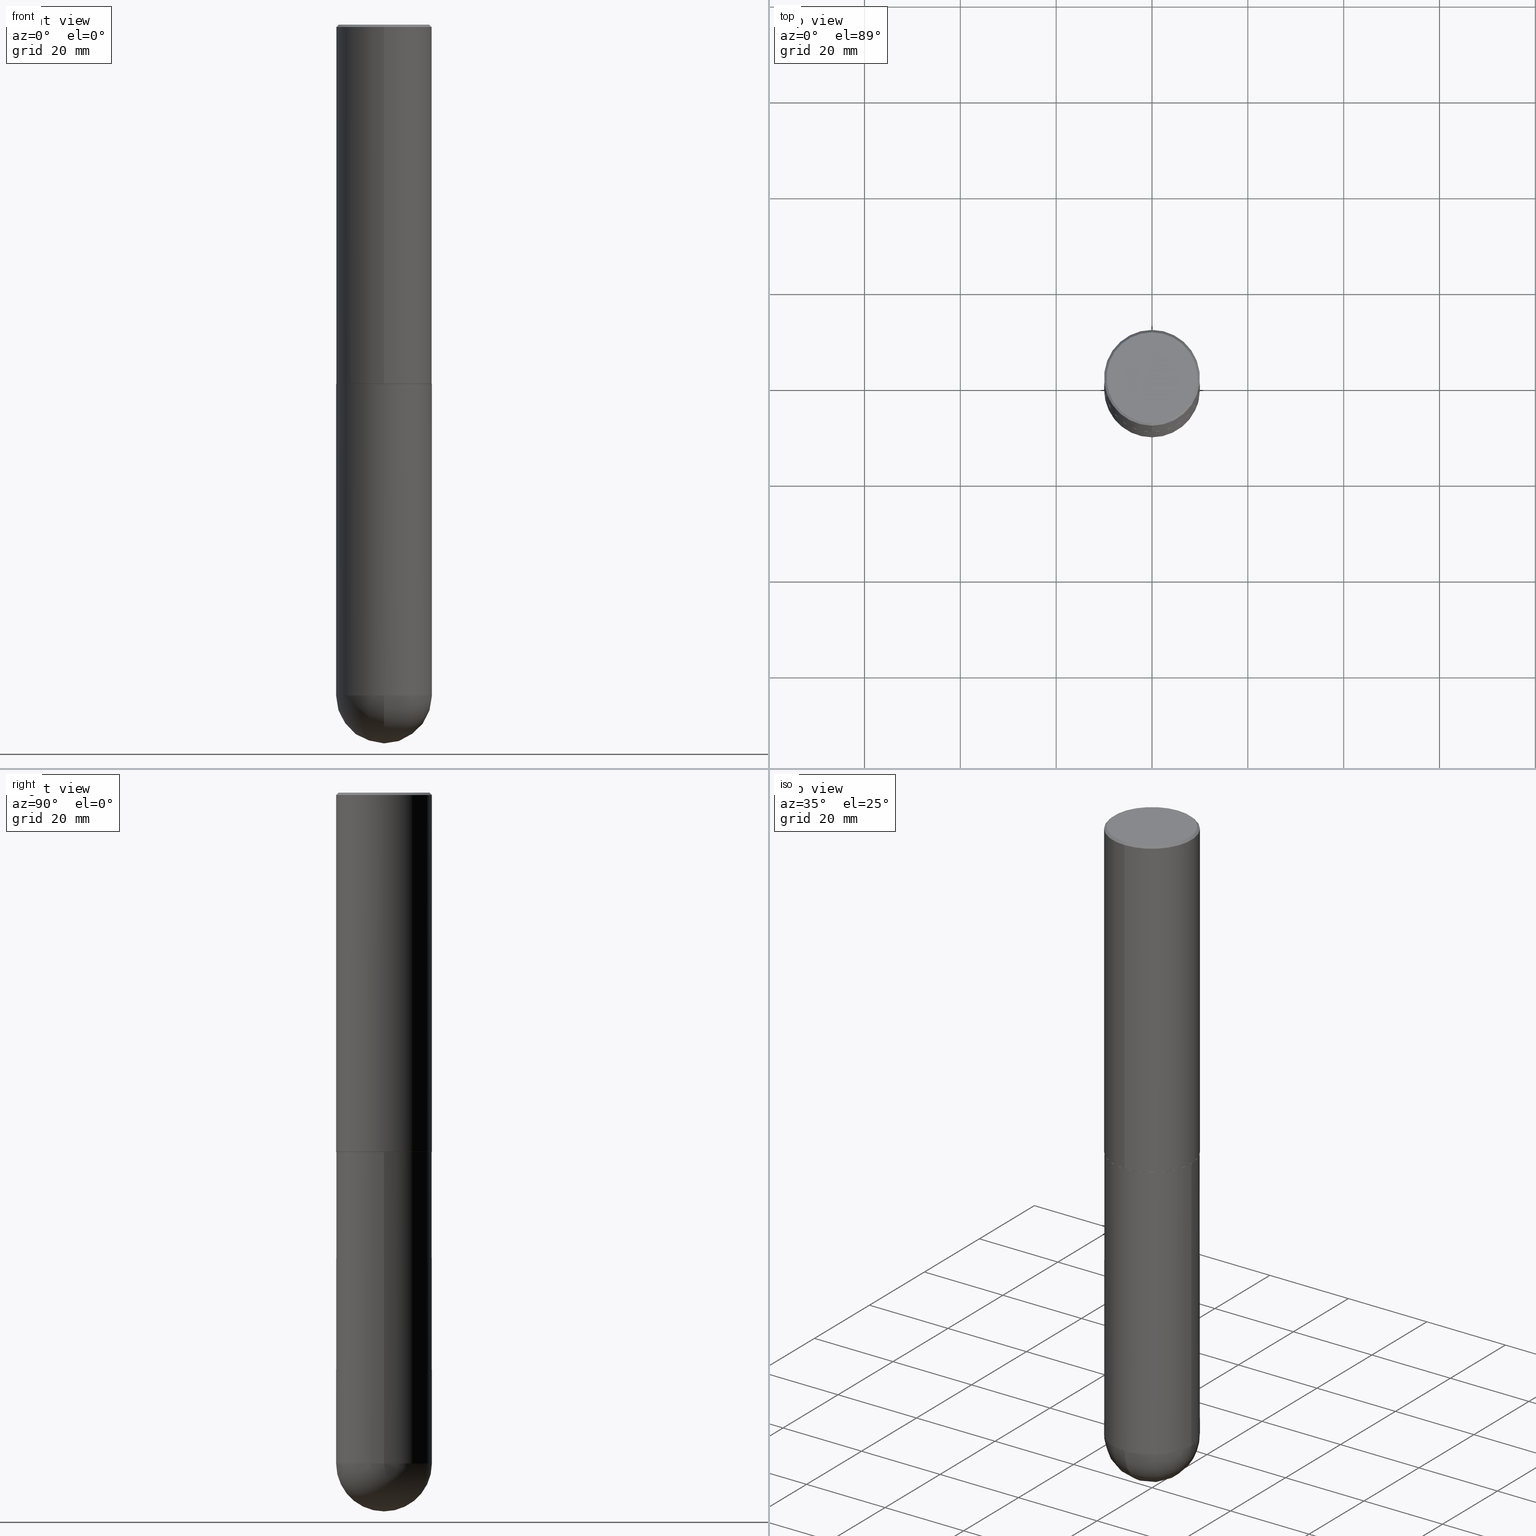
[diagram: canonical four-view strip — front | top / right | iso, engineering-drawing reading convention]
A machine part, canonical four-view strip (front | top / right | iso — engineering-drawing reading convention). The complete STEP part file that produces these views, byte-faithful:
ISO-10303-21;
HEADER;
FILE_DESCRIPTION (( 'STEP AP203' ),
    '1' );
FILE_NAME ('70548.STEP',
    '2024-04-10T12:35:20',
    ( '' ),
    ( '' ),
    'SwSTEP 2.0',
    'SolidWorks 2023',
    '' );
FILE_SCHEMA (( 'CONFIG_CONTROL_DESIGN' ));
ENDSEC;

DATA;
#1 = DIRECTION ( 'NONE',  ( 1.000000000000000000, -6.982962677686266711E-15, 0.000000000000000000 ) ) ;
#2 = CARTESIAN_POINT ( 'NONE',  ( 0.000000000000000000, 0.000000000000000000, 0.000000000000000000 ) ) ;
#3 = ORIENTED_EDGE ( 'NONE', *, *, #133, .F. ) ;
#4 = AXIS2_PLACEMENT_3D ( 'NONE', #39, #158, #394 ) ;
#5 = PERSON_AND_ORGANIZATION ( #117, #273 ) ;
#6 = VERTEX_POINT ( 'NONE', #89 ) ;
#7 = DIRECTION ( 'NONE',  ( -2.445468806185136597E-29, 3.491481338843145583E-15, 1.000000000000000000 ) ) ;
#8 = ORIENTED_EDGE ( 'NONE', *, *, #174, .T. ) ;
#9 = CARTESIAN_POINT ( 'NONE',  ( 0.3937000000000001054, -2.749192406205084005E-15, 1.919750796630860452E-29 ) ) ;
#10 = AXIS2_PLACEMENT_3D ( 'NONE', #119, #248, #353 ) ;
#11 = CC_DESIGN_DATE_AND_TIME_ASSIGNMENT ( #154, #286, ( #14 ) ) ;
#12 = CARTESIAN_POINT ( 'NONE',  ( 2.797406750687515181E-15, 0.3937000000000001609, -1.374461349052444348E-15 ) ) ;
#13 = AXIS2_PLACEMENT_3D ( 'NONE', #173, #406, #107 ) ;
#14 = SECURITY_CLASSIFICATION ( '', '', #34 ) ;
#15 = CARTESIAN_POINT ( 'NONE',  ( -0.3937000000000001054, 2.797406750687515181E-15, -1.936584745033357016E-29 ) ) ;
#16 = FACE_OUTER_BOUND ( 'NONE', #166, .T. ) ;
#17 = LINE ( 'NONE', #236, #178 ) ;
#18 = VERTEX_POINT ( 'NONE', #84 ) ;
#19 = AXIS2_PLACEMENT_3D ( 'NONE', #316, #358, #281 ) ;
#20 = DIRECTION ( 'NONE',  ( -2.445707993586407058E-29, 3.491138808870824878E-15, 1.000000000000000000 ) ) ;
#21 = DIRECTION ( 'NONE',  ( 2.438088387897960049E-29, -3.491481338843145188E-15, -1.000000000000000000 ) ) ;
#22 = CARTESIAN_POINT ( 'NONE',  ( 7.220735744022852519E-29, -1.030929694920215502E-14, -2.952700000000000102 ) ) ;
#23 = VECTOR ( 'NONE', #104, 39.37007874015748143 ) ;
#24 = VERTEX_POINT ( 'NONE', #210 ) ;
#25 = DIRECTION ( 'NONE',  ( -2.445468806185136597E-29, 3.491481338843145583E-15, 1.000000000000000000 ) ) ;
#26 = CARTESIAN_POINT ( 'NONE',  ( 4.891415987172836711E-31, -6.982277617741682099E-17, -0.02000000000000009062 ) ) ;
#27 = PERSON_AND_ORGANIZATION ( #117, #273 ) ;
#28 = ADVANCED_FACE ( 'NONE', ( #349 ), #85, .T. ) ;
#29 = DIRECTION ( 'NONE',  ( -4.937700262165728178E-15, -0.7071067811867141062, 0.7071067811863809283 ) ) ;
#30 = ORIENTED_EDGE ( 'NONE', *, *, #234, .T. ) ;
#31 = PERSON_AND_ORGANIZATION ( #117, #273 ) ;
#32 = CARTESIAN_POINT ( 'NONE',  ( -4.277078807657653030E-45, 6.105338762096597437E-31, 1.748810086434606711E-16 ) ) ;
#33 = FACE_OUTER_BOUND ( 'NONE', #114, .T. ) ;
#34 = SECURITY_CLASSIFICATION_LEVEL ( 'unclassified' ) ;
#35 = ORIENTED_EDGE ( 'NONE', *, *, #195, .T. ) ;
#36 = CIRCLE ( 'NONE', #10, 0.3937000000000001054 ) ;
#37 = EDGE_CURVE ( 'NONE', #293, #214, #70, .T. ) ;
#38 = ORIENTED_EDGE ( 'NONE', *, *, #37, .T. ) ;
#39 = CARTESIAN_POINT ( 'NONE',  ( 7.221441992662584645E-29, -1.030828556095288414E-14, -2.952700000000000102 ) ) ;
#40 = EDGE_CURVE ( 'NONE', #168, #64, #196, .T. ) ;
#41 = ORIENTED_EDGE ( 'NONE', *, *, #94, .T. ) ;
#42 = FACE_OUTER_BOUND ( 'NONE', #386, .T. ) ;
#43 = CARTESIAN_POINT ( 'NONE',  ( 7.218996284668997343E-29, -1.030479442214401424E-14, -2.951700000000000212 ) ) ;
#44 = DIRECTION ( 'NONE',  ( 4.937700262164538576E-15, 0.7071067811865437980, -0.7071067811865511255 ) ) ;
#45 = LINE ( 'NONE', #15, #23 ) ;
#46 = PRODUCT ( '70548', '70548', '', ( #385 ) ) ;
#47 = CARTESIAN_POINT ( 'NONE',  ( -2.749192406205012614E-15, -0.3937000000000105970, -2.951699999999998436 ) ) ;
#48 = DIRECTION ( 'NONE',  ( 6.982962677686265922E-15, 1.000000000000000000, -2.775563112689116301E-15 ) ) ;
#49 = CIRCLE ( 'NONE', #265, 0.3937000000000001054 ) ;
#50 = EDGE_CURVE ( 'NONE', #18, #64, #402, .T. ) ;
#51 = DIRECTION ( 'NONE',  ( -2.445707993586407058E-29, 3.491138808870824878E-15, 1.000000000000000000 ) ) ;
#52 = AXIS2_PLACEMENT_3D ( 'NONE', #143, #140, #271 ) ;
#53 = AXIS2_PLACEMENT_3D ( 'NONE', #382, #21, #276 ) ;
#54 = VERTEX_POINT ( 'NONE', #47 ) ;
#55 = EDGE_LOOP ( 'NONE', ( #96, #56, #184, #247 ) ) ;
#56 = ORIENTED_EDGE ( 'NONE', *, *, #242, .F. ) ;
#57 = CARTESIAN_POINT ( 'NONE',  ( 7.218996284668997343E-29, -1.030479442214401424E-14, -2.951700000000000212 ) ) ;
#58 = ADVANCED_FACE ( 'NONE', ( #137 ), #300, .T. ) ;
#59 = COORDINATED_UNIVERSAL_TIME_OFFSET ( 5, 0, .BEHIND. ) ;
#60 = ORIENTED_EDGE ( 'NONE', *, *, #332, .F. ) ;
#61 = COORDINATED_UNIVERSAL_TIME_OFFSET ( 5, 0, .BEHIND. ) ;
#62 = CIRCLE ( 'NONE', #389, 0.3937000000000000499 ) ;
#63 = ADVANCED_FACE ( 'NONE', ( #67 ), #66, .T. ) ;
#64 = VERTEX_POINT ( 'NONE', #102 ) ;
#65 = CALENDAR_DATE ( 2024, 10, 4 ) ;
#66 = CYLINDRICAL_SURFACE ( 'NONE', #397, 0.3937000000000001054 ) ;
#67 = FACE_OUTER_BOUND ( 'NONE', #306, .T. ) ;
#68 = PLANE ( 'NONE',  #113 ) ;
#69 = DIRECTION ( 'NONE',  ( -2.445468806185136597E-29, 3.491481338843145583E-15, 1.000000000000000000 ) ) ;
#70 = LINE ( 'NONE', #9, #377 ) ;
#71 = CIRCLE ( 'NONE', #310, 0.3937000000000001054 ) ;
#72 = APPROVAL_PERSON_ORGANIZATION ( #5, #239, #392 ) ;
#73 = LOCAL_TIME ( 8, 35, 20.00000000000000000, #97 ) ;
#74 = EDGE_CURVE ( 'NONE', #18, #54, #362, .T. ) ;
#75 =( LENGTH_UNIT ( ) NAMED_UNIT ( * ) SI_UNIT ( $, .METRE. ) );
#76 = FACE_OUTER_BOUND ( 'NONE', #262, .T. ) ;
#77 = PLANE ( 'NONE',  #53 ) ;
#78 = DIRECTION ( 'NONE',  ( -1.000000000000000000, 6.982962677686265922E-15, -4.883557194083112340E-29 ) ) ;
#79 = CARTESIAN_POINT ( 'NONE',  ( 1.314781518801735134E-28, -1.971852921157570065E-14, -5.511800000000000033 ) ) ;
#80 = CIRCLE ( 'NONE', #237, 0.3937000000000001054 ) ;
#81 = LOCAL_TIME ( 8, 35, 20.00000000000000000, #59 ) ;
#82 = CC_DESIGN_PERSON_AND_ORGANIZATION_ASSIGNMENT ( #31, #218, ( #335 ) ) ;
#83 = ADVANCED_FACE ( 'NONE', ( #130 ), #374, .T. ) ;
#84 = CARTESIAN_POINT ( 'NONE',  ( 2.797406750687551863E-15, 0.3936999999999900024, -2.951700000000001545 ) ) ;
#85 = CONICAL_SURFACE ( 'NONE', #139, 0.3937000000000000499, 0.7853981633974466137 ) ;
#86 =( NAMED_UNIT ( * ) SI_UNIT ( $, .STERADIAN. ) SOLID_ANGLE_UNIT ( ) );
#87 = ADVANCED_FACE ( 'NONE', ( #167 ), #68, .F. ) ;
#88 = DATE_AND_TIME ( #388, #73 ) ;
#89 = CARTESIAN_POINT ( 'NONE',  ( 2.749192406205216928E-15, 0.3936999999999805655, -5.511800000000000921 ) ) ;
#90 = CALENDAR_DATE ( 2024, 10, 4 ) ;
#91 = FACE_OUTER_BOUND ( 'NONE', #291, .T. ) ;
#92 = ORIENTED_EDGE ( 'NONE', *, *, #241, .T. ) ;
#93 = PERSON_AND_ORGANIZATION_ROLE ( 'design_supplier' ) ;
#94 = EDGE_CURVE ( 'NONE', #181, #118, #45, .T. ) ;
#95 = CARTESIAN_POINT ( 'NONE',  ( -0.3937000000000001054, -1.197941514563138553E-14, -5.511800000000000033 ) ) ;
#96 = ORIENTED_EDGE ( 'NONE', *, *, #315, .F. ) ;
#97 = COORDINATED_UNIVERSAL_TIME_OFFSET ( 5, 0, .BEHIND. ) ;
#98 = AXIS2_PLACEMENT_3D ( 'NONE', #326, #20, #200 ) ;
#99 = CYLINDRICAL_SURFACE ( 'NONE', #145, 0.3937000000000001054 ) ;
#100 = APPLICATION_PROTOCOL_DEFINITION ( 'international standard', 'config_control_design', 1994, #142 ) ;
#101 = DIRECTION ( 'NONE',  ( 6.982962677686265133E-15, 1.000000000000000000, -3.491137977679279424E-15 ) ) ;
#102 = CARTESIAN_POINT ( 'NONE',  ( 2.749192406205083217E-15, 0.3936999999999999389, -0.02000000000000146452 ) ) ;
#103 = CIRCLE ( 'NONE', #207, 0.3937000000000002720 ) ;
#104 = DIRECTION ( 'NONE',  ( -2.445468806185136877E-29, 3.491481338843145188E-15, 1.000000000000000000 ) ) ;
#105 = ADVANCED_FACE ( 'NONE', ( #42 ), #99, .T. ) ;
#106 = DIRECTION ( 'NONE',  ( -1.000000000000000000, 7.105427357601001070E-15, -4.926315508542082329E-29 ) ) ;
#107 = DIRECTION ( 'NONE',  ( -6.982962677686265133E-15, -1.000000000000000000, 4.173946514383900962E-15 ) ) ;
#108 = AXIS2_PLACEMENT_3D ( 'NONE', #371, #227, #376 ) ;
#109 = CARTESIAN_POINT ( 'NONE',  ( 4.891415987172836711E-31, -6.982277617741682099E-17, -0.02000000000000009062 ) ) ;
#110 = CARTESIAN_POINT ( 'NONE',  ( -0.3937000000000000499, -1.197941514563138553E-14, -2.952700000000000102 ) ) ;
#111 = APPROVAL_DATE_TIME ( #305, #121 ) ;
#112 = ORIENTED_EDGE ( 'NONE', *, *, #290, .F. ) ;
#113 = AXIS2_PLACEMENT_3D ( 'NONE', #199, #337, #398 ) ;
#114 = EDGE_LOOP ( 'NONE', ( #217, #92, #267, #256 ) ) ;
#115 = DESIGN_CONTEXT ( 'detailed design', #179, 'design' ) ;
#116 = ORIENTED_EDGE ( 'NONE', *, *, #209, .T. ) ;
#117 = PERSON ( 'UNSPECIFIED', 'UNSPECIFIED', 'UNSPECIFIED', ('UNSPECIFIED'), ('UNSPECIFIED'), ('UNSPECIFIED') ) ;
#118 = VERTEX_POINT ( 'NONE', #110 ) ;
#119 = CARTESIAN_POINT ( 'NONE',  ( 1.347893496593123646E-28, -1.924434684343564878E-14, -5.511800000000000033 ) ) ;
#120 = PRODUCT_DEFINITION ( 'UNKNOWN', '', #335, #115 ) ;
#121 = APPROVAL ( #360, 'UNSPECIFIED' ) ;
#122 = SPHERICAL_SURFACE ( 'NONE', #297, 0.3937000000000001054 ) ;
#123 = AXIS2_PLACEMENT_3D ( 'NONE', #235, #269, #268 ) ;
#124 = ORIENTED_EDGE ( 'NONE', *, *, #204, .F. ) ;
#125 = VERTEX_POINT ( 'NONE', #203 ) ;
#126 = DIRECTION ( 'NONE',  ( 1.000000000000000000, -6.982962677686267499E-15, 0.000000000000000000 ) ) ;
#127 = EDGE_LOOP ( 'NONE', ( #220, #313, #387, #124 ) ) ;
#128 = PERSON_AND_ORGANIZATION_ROLE ( 'creator' ) ;
#129 = AXIS2_PLACEMENT_3D ( 'NONE', #380, #78, #48 ) ;
#130 = FACE_OUTER_BOUND ( 'NONE', #347, .T. ) ;
#131 = CC_DESIGN_APPROVAL ( #239, ( #120 ) ) ;
#132 = MANIFOLD_SOLID_BREP ( 'Body-Move/Copy2[2]', #212 ) ;
#133 = EDGE_CURVE ( 'NONE', #118, #214, #62, .T. ) ;
#134 = CARTESIAN_POINT ( 'NONE',  ( -4.277078807657653030E-45, 6.105338762096597437E-31, 1.748810086434606711E-16 ) ) ;
#135 = APPROVAL ( #318, 'UNSPECIFIED' ) ;
#136 = CARTESIAN_POINT ( 'NONE',  ( 0.3937000000000001054, -1.752601430252398275E-14, -5.511800000000000033 ) ) ;
#137 = FACE_OUTER_BOUND ( 'NONE', #162, .T. ) ;
#138 = EDGE_CURVE ( 'NONE', #181, #24, #279, .T. ) ;
#139 = AXIS2_PLACEMENT_3D ( 'NONE', #26, #404, #101 ) ;
#140 = DIRECTION ( 'NONE',  ( -2.445707993586407058E-29, 3.491138808870824878E-15, 1.000000000000000000 ) ) ;
#141 = DIRECTION ( 'NONE',  ( 2.445707993586407058E-29, -3.491138808870824878E-15, -1.000000000000000000 ) ) ;
#142 = APPLICATION_CONTEXT ( 'configuration controlled 3d designs of mechanical parts and assemblies' ) ;
#143 = CARTESIAN_POINT ( 'NONE',  ( 7.221441992662584645E-29, -1.030828556095288414E-14, -2.952700000000000102 ) ) ;
#144 = SPHERICAL_SURFACE ( 'NONE', #129, 0.3937000000000001054 ) ;
#145 = AXIS2_PLACEMENT_3D ( 'NONE', #366, #69, #170 ) ;
#146 = CC_DESIGN_SECURITY_CLASSIFICATION ( #14, ( #335 ) ) ;
#147 = EDGE_CURVE ( 'NONE', #54, #18, #103, .T. ) ;
#148 = DIRECTION ( 'NONE',  ( -4.851104656540954809E-15, -0.7071067811865486830, -0.7071067811865462405 ) ) ;
#149 = ADVANCED_FACE ( 'NONE', ( #91 ), #287, .F. ) ;
#150 = CC_DESIGN_PERSON_AND_ORGANIZATION_ASSIGNMENT ( #27, #193, ( #14 ) ) ;
#151 = ORIENTED_EDGE ( 'NONE', *, *, #174, .F. ) ;
#152 = CARTESIAN_POINT ( 'NONE',  ( -2.742209443527324233E-15, -0.3927000000000103186, -2.952699999999998326 ) ) ;
#153 = ORIENTED_EDGE ( 'NONE', *, *, #204, .T. ) ;
#154 = DATE_AND_TIME ( #314, #208 ) ;
#155 = AXIS2_PLACEMENT_3D ( 'NONE', #43, #233, #298 ) ;
#156 = APPROVAL_PERSON_ORGANIZATION ( #292, #135, #187 ) ;
#157 = ORIENTED_EDGE ( 'NONE', *, *, #147, .T. ) ;
#158 = DIRECTION ( 'NONE',  ( -2.445707993586407058E-29, 3.491138808870824484E-15, 1.000000000000000000 ) ) ;
#159 = EDGE_LOOP ( 'NONE', ( #359, #253 ) ) ;
#160 = DIRECTION ( 'NONE',  ( -6.982962677686265922E-15, -1.000000000000000000, 3.491138808870824878E-15 ) ) ;
#161 = UNCERTAINTY_MEASURE_WITH_UNIT (LENGTH_MEASURE( 1.000000000000000082E-05 ), #202, 'distance_accuracy_value', 'NONE');
#162 = EDGE_LOOP ( 'NONE', ( #183, #295, #8, #112 ) ) ;
#163 = DIRECTION ( 'NONE',  ( -2.445707993586407058E-29, 3.491138808870824878E-15, 1.000000000000000000 ) ) ;
#164 = CIRCLE ( 'NONE', #408, 0.3937000000000000499 ) ;
#165 = DIRECTION ( 'NONE',  ( -6.982962677686265922E-15, -1.000000000000000000, 3.491138808870824878E-15 ) ) ;
#166 = EDGE_LOOP ( 'NONE', ( #277, #282, #225, #321 ) ) ;
#167 = FACE_OUTER_BOUND ( 'NONE', #159, .T. ) ;
#168 = VERTEX_POINT ( 'NONE', #222 ) ;
#169 = EDGE_CURVE ( 'NONE', #175, #168, #299, .T. ) ;
#170 = DIRECTION ( 'NONE',  ( 1.000000000000000000, -6.982962677686266711E-15, 4.876176775795935793E-29 ) ) ;
#171 = CIRCLE ( 'NONE', #324, 0.3937000000000000499 ) ;
#172 = CARTESIAN_POINT ( 'NONE',  ( 1.412743020541493694E-28, -2.106901824243703318E-14, -5.905499999999999972 ) ) ;
#173 = CARTESIAN_POINT ( 'NONE',  ( 7.221441992662584645E-29, -1.030828556095288414E-14, -2.952700000000000102 ) ) ;
#174 = EDGE_CURVE ( 'NONE', #54, #259, #211, .T. ) ;
#175 = VERTEX_POINT ( 'NONE', #189 ) ;
#176 = CARTESIAN_POINT ( 'NONE',  ( 4.891415987172836711E-31, -6.982277617741682099E-17, -0.02000000000000009062 ) ) ;
#177 = AXIS2_PLACEMENT_3D ( 'NONE', #176, #163, #296 ) ;
#178 = VECTOR ( 'NONE', #148, 39.37007874015748854 ) ;
#179 = APPLICATION_CONTEXT ( 'configuration controlled 3d designs of mechanical parts and assemblies' ) ;
#180 = CONICAL_SURFACE ( 'NONE', #123, 0.3926999999999999935, 0.7853981633976873100 ) ;
#181 = VERTEX_POINT ( 'NONE', #95 ) ;
#182 = PERSON_AND_ORGANIZATION ( #117, #273 ) ;
#183 = ORIENTED_EDGE ( 'NONE', *, *, #50, .F. ) ;
#184 = ORIENTED_EDGE ( 'NONE', *, *, #40, .T. ) ;
#185 = CARTESIAN_POINT ( 'NONE',  ( -2.742209443527324233E-15, -0.3927000000000103186, -2.952699999999998326 ) ) ;
#186 = ORIENTED_EDGE ( 'NONE', *, *, #138, .F. ) ;
#187 = APPROVAL_ROLE ( '' ) ;
#188 = PRODUCT_DEFINITION_SHAPE ( 'NONE', 'NONE',  #120 ) ;
#189 = CARTESIAN_POINT ( 'NONE',  ( -2.632373081744935132E-15, -0.3736999999999998101, 1.479519581518487138E-15 ) ) ;
#190 = CONICAL_SURFACE ( 'NONE', #98, 0.3926999999999999935, 0.7853981633976873100 ) ;
#191 = CALENDAR_DATE ( 2024, 10, 4 ) ;
#192 = VERTEX_POINT ( 'NONE', #152 ) ;
#193 = PERSON_AND_ORGANIZATION_ROLE ( 'classification_officer' ) ;
#194 = EDGE_LOOP ( 'NONE', ( #320, #30, #116, #331 ) ) ;
#195 = EDGE_CURVE ( 'NONE', #293, #6, #71, .T. ) ;
#196 = LINE ( 'NONE', #330, #272 ) ;
#197 = ORIENTED_EDGE ( 'NONE', *, *, #348, .F. ) ;
#198 = EDGE_CURVE ( 'NONE', #214, #118, #171, .T. ) ;
#199 = CARTESIAN_POINT ( 'NONE',  ( 2.609533152651356226E-15, 0.3736999999999998101, -1.217198068553296439E-15 ) ) ;
#200 = DIRECTION ( 'NONE',  ( -6.982962677686265133E-15, -1.000000000000000000, 4.173946514383900962E-15 ) ) ;
#201 = DIRECTION ( 'NONE',  ( 6.982962677686265133E-15, 1.000000000000000000, 0.000000000000000000 ) ) ;
#202 =( CONVERSION_BASED_UNIT ( 'INCH', #378 ) LENGTH_UNIT ( ) NAMED_UNIT ( #373 ) );
#203 = CARTESIAN_POINT ( 'NONE',  ( 2.793854037008787252E-15, 0.3926999999999897240, -2.952700000000001435 ) ) ;
#204 = EDGE_CURVE ( 'NONE', #24, #293, #36, .T. ) ;
#205 = DATE_AND_TIME ( #191, #81 ) ;
#206 = FACE_OUTER_BOUND ( 'NONE', #317, .T. ) ;
#207 = AXIS2_PLACEMENT_3D ( 'NONE', #57, #319, #226 ) ;
#208 = LOCAL_TIME ( 8, 35, 20.00000000000000000, #396 ) ;
#209 = EDGE_CURVE ( 'NONE', #192, #54, #355, .T. ) ;
#210 = CARTESIAN_POINT ( 'NONE',  ( -2.797406750687381075E-15, -0.3937000000000196454, -5.511799999999999145 ) ) ;
#211 = LINE ( 'NONE', #329, #243 ) ;
#212 = CLOSED_SHELL ( 'NONE', ( #336, #83, #400, #28, #58, #372, #149, #87 ) ) ;
#213 = ADVANCED_FACE ( 'NONE', ( #283 ), #122, .T. ) ;
#214 = VERTEX_POINT ( 'NONE', #258 ) ;
#215 = DATE_TIME_ROLE ( 'creation_date' ) ;
#216 = DIRECTION ( 'NONE',  ( -1.000000000000000000, 6.982962677686265922E-15, -4.883557194083112340E-29 ) ) ;
#217 = ORIENTED_EDGE ( 'NONE', *, *, #338, .T. ) ;
#218 = PERSON_AND_ORGANIZATION_ROLE ( 'creator' ) ;
#219 = APPROVAL_STATUS ( 'not_yet_approved' ) ;
#220 = ORIENTED_EDGE ( 'NONE', *, *, #379, .F. ) ;
#221 = PERSON_AND_ORGANIZATION ( #117, #273 ) ;
#222 = CARTESIAN_POINT ( 'NONE',  ( 2.679362779428219524E-15, 0.3736999999999998101, -1.129757564231565944E-15 ) ) ;
#223 = AXIS2_PLACEMENT_3D ( 'NONE', #134, #303, #238 ) ;
#224 = AXIS2_PLACEMENT_3D ( 'NONE', #109, #141, #405 ) ;
#225 = ORIENTED_EDGE ( 'NONE', *, *, #348, .T. ) ;
#226 = DIRECTION ( 'NONE',  ( -6.982962677686265922E-15, -1.000000000000000000, 4.163344669033672479E-15 ) ) ;
#227 = DIRECTION ( 'NONE',  ( -2.445707993586407058E-29, 3.491138808870824878E-15, 1.000000000000000000 ) ) ;
#228 = CC_DESIGN_PERSON_AND_ORGANIZATION_ASSIGNMENT ( #328, #128, ( #120 ) ) ;
#229 = DIRECTION ( 'NONE',  ( -2.445468806185136877E-29, 3.491481338843145188E-15, 1.000000000000000000 ) ) ;
#230 = ORIENTED_EDGE ( 'NONE', *, *, #94, .F. ) ;
#231 = LINE ( 'NONE', #368, #307 ) ;
#232 = CIRCLE ( 'NONE', #223, 0.3736999999999998101 ) ;
#233 = DIRECTION ( 'NONE',  ( -2.445707993586407058E-29, 3.491138808870824878E-15, 1.000000000000000000 ) ) ;
#234 = EDGE_CURVE ( 'NONE', #125, #192, #351, .T. ) ;
#235 = CARTESIAN_POINT ( 'NONE',  ( 7.221441992662584645E-29, -1.030828556095288414E-14, -2.952700000000000102 ) ) ;
#236 = CARTESIAN_POINT ( 'NONE',  ( -2.700978061722651252E-15, -0.3937000000000001054, -0.01999999999999871672 ) ) ;
#237 = AXIS2_PLACEMENT_3D ( 'NONE', #275, #410, #284 ) ;
#238 = DIRECTION ( 'NONE',  ( -6.982962677686265922E-15, -1.000000000000000000, 3.491138808870824878E-15 ) ) ;
#239 = APPROVAL ( #219, 'UNSPECIFIED' ) ;
#240 = CARTESIAN_POINT ( 'NONE',  ( 4.891415987172836711E-31, -6.982277617741682099E-17, -0.02000000000000009062 ) ) ;
#241 = EDGE_CURVE ( 'NONE', #125, #18, #231, .T. ) ;
#242 = EDGE_CURVE ( 'NONE', #168, #175, #232, .T. ) ;
#243 = VECTOR ( 'NONE', #361, 39.37007874015748143 ) ;
#244 = CIRCLE ( 'NONE', #401, 0.3937000000000001054 ) ;
#245 =( NAMED_UNIT ( * ) PLANE_ANGLE_UNIT ( ) SI_UNIT ( $, .RADIAN. ) );
#246 = DIRECTION ( 'NONE',  ( 0.000000000000000000, 0.000000000000000000, 1.000000000000000000 ) ) ;
#247 = ORIENTED_EDGE ( 'NONE', *, *, #290, .T. ) ;
#248 = DIRECTION ( 'NONE',  ( -2.445468806185136597E-29, 3.491481338843145583E-15, 1.000000000000000000 ) ) ;
#249 = PERSON_AND_ORGANIZATION_ROLE ( 'design_owner' ) ;
#250 = CARTESIAN_POINT ( 'NONE',  ( 1.314781518801735134E-28, -1.971852921157570065E-14, -5.511800000000000033 ) ) ;
#251 = VECTOR ( 'NONE', #29, 39.37007874015748143 ) ;
#252 = AXIS2_PLACEMENT_3D ( 'NONE', #2, #246, #312 ) ;
#253 = ORIENTED_EDGE ( 'NONE', *, *, #169, .T. ) ;
#254 = ORIENTED_EDGE ( 'NONE', *, *, #50, .T. ) ;
#255 = COORDINATED_UNIVERSAL_TIME_OFFSET ( 5, 0, .BEHIND. ) ;
#256 = ORIENTED_EDGE ( 'NONE', *, *, #209, .F. ) ;
#257 = ADVANCED_FACE ( 'NONE', ( #76 ), #144, .T. ) ;
#258 = CARTESIAN_POINT ( 'NONE',  ( 0.3937000000000000499, -1.305848935540723823E-14, -2.952700000000000102 ) ) ;
#259 = VERTEX_POINT ( 'NONE', #343 ) ;
#260 = LOCAL_TIME ( 8, 35, 20.00000000000000000, #255 ) ;
#261 = CARTESIAN_POINT ( 'NONE',  ( 0.000000000000000000, 0.000000000000000000, 0.000000000000000000 ) ) ;
#262 = EDGE_LOOP ( 'NONE', ( #285, #327, #186, #60 ) ) ;
#263 = DIRECTION ( 'NONE',  ( 6.982962677686265922E-15, 1.000000000000000000, -2.775563112689116301E-15 ) ) ;
#264 = DIRECTION ( 'NONE',  ( -2.445707993586407058E-29, 3.491138808870824878E-15, 1.000000000000000000 ) ) ;
#265 = AXIS2_PLACEMENT_3D ( 'NONE', #79, #407, #201 ) ;
#266 = DIRECTION ( 'NONE',  ( -2.445468806185136597E-29, 3.491481338843145583E-15, 1.000000000000000000 ) ) ;
#267 = ORIENTED_EDGE ( 'NONE', *, *, #147, .F. ) ;
#268 = DIRECTION ( 'NONE',  ( -6.982962677686265133E-15, -1.000000000000000000, 4.173946514383900962E-15 ) ) ;
#269 = DIRECTION ( 'NONE',  ( -2.445707993586407058E-29, 3.491138808870824878E-15, 1.000000000000000000 ) ) ;
#270 = CC_DESIGN_PERSON_AND_ORGANIZATION_ASSIGNMENT ( #390, #249, ( #46 ) ) ;
#271 = DIRECTION ( 'NONE',  ( -6.982962677686265133E-15, -1.000000000000000000, 4.173946514383900962E-15 ) ) ;
#272 = VECTOR ( 'NONE', #44, 39.37007874015748854 ) ;
#273 = ORGANIZATION ( 'UNSPECIFIED', 'UNSPECIFIED', '' ) ;
#274 = ORIENTED_EDGE ( 'NONE', *, *, #198, .T. ) ;
#275 = CARTESIAN_POINT ( 'NONE',  ( 1.347893496593123646E-28, -1.924434684343564878E-14, -5.511800000000000033 ) ) ;
#276 = DIRECTION ( 'NONE',  ( -1.000000000000000000, 6.982962677686265922E-15, -4.876176775795935793E-29 ) ) ;
#277 = ORIENTED_EDGE ( 'NONE', *, *, #169, .F. ) ;
#278 = MANIFOLD_SOLID_BREP ( 'Body-Move/Copy2[1]', #288 ) ;
#279 = CIRCLE ( 'NONE', #19, 0.3937000000000001054 ) ;
#280 = LOCAL_TIME ( 8, 35, 20.00000000000000000, #61 ) ;
#281 = DIRECTION ( 'NONE',  ( 1.000000000000000000, -6.982962677686266711E-15, 0.000000000000000000 ) ) ;
#282 = ORIENTED_EDGE ( 'NONE', *, *, #315, .T. ) ;
#283 = FACE_OUTER_BOUND ( 'NONE', #127, .T. ) ;
#284 = DIRECTION ( 'NONE',  ( 1.000000000000000000, -6.982962677686266711E-15, 0.000000000000000000 ) ) ;
#285 = ORIENTED_EDGE ( 'NONE', *, *, #309, .F. ) ;
#286 = DATE_TIME_ROLE ( 'classification_date' ) ;
#287 = PLANE ( 'NONE',  #4 ) ;
#288 = CLOSED_SHELL ( 'NONE', ( #63, #257, #213, #365, #105 ) ) ;
#289 = APPROVAL_PERSON_ORGANIZATION ( #221, #121, #364 ) ;
#290 = EDGE_CURVE ( 'NONE', #64, #259, #369, .T. ) ;
#291 = EDGE_LOOP ( 'NONE', ( #391, #375 ) ) ;
#292 = PERSON_AND_ORGANIZATION ( #117, #273 ) ;
#293 = VERTEX_POINT ( 'NONE', #136 ) ;
#294 = ADVANCED_BREP_SHAPE_REPRESENTATION ( '70548', ( #278, #132, #252 ), #384 ) ;
#295 = ORIENTED_EDGE ( 'NONE', *, *, #74, .T. ) ;
#296 = DIRECTION ( 'NONE',  ( -6.982962677686265133E-15, -1.000000000000000000, 3.491137977679279424E-15 ) ) ;
#297 = AXIS2_PLACEMENT_3D ( 'NONE', #250, #216, #263 ) ;
#298 = DIRECTION ( 'NONE',  ( -6.982962677686265922E-15, -1.000000000000000000, 4.163344669033672479E-15 ) ) ;
#299 = CIRCLE ( 'NONE', #411, 0.3736999999999998101 ) ;
#300 = CYLINDRICAL_SURFACE ( 'NONE', #346, 0.3937000000000001609 ) ;
#301 = SHAPE_DEFINITION_REPRESENTATION ( #188, #294 ) ;
#302 = DIRECTION ( 'NONE',  ( -7.105427357601001070E-15, -1.000000000000000000, 0.000000000000000000 ) ) ;
#303 = DIRECTION ( 'NONE',  ( -2.445707993586407058E-29, 3.491138808870824878E-15, 1.000000000000000000 ) ) ;
#304 = DIRECTION ( 'NONE',  ( 1.000000000000000000, -6.982962677686267499E-15, 0.000000000000000000 ) ) ;
#305 = DATE_AND_TIME ( #65, #280 ) ;
#306 = EDGE_LOOP ( 'NONE', ( #393, #41, #354, #357, #35 ) ) ;
#307 = VECTOR ( 'NONE', #333, 39.37007874015748143 ) ;
#308 = PRODUCT_RELATED_PRODUCT_CATEGORY ( 'detail', '', ( #46 ) ) ;
#309 = EDGE_CURVE ( 'NONE', #363, #6, #49, .T. ) ;
#310 = AXIS2_PLACEMENT_3D ( 'NONE', #311, #25, #1 ) ;
#311 = CARTESIAN_POINT ( 'NONE',  ( 1.347893496593123646E-28, -1.924434684343564878E-14, -5.511800000000000033 ) ) ;
#312 = DIRECTION ( 'NONE',  ( 1.000000000000000000, 0.000000000000000000, 0.000000000000000000 ) ) ;
#313 = ORIENTED_EDGE ( 'NONE', *, *, #309, .T. ) ;
#314 = CALENDAR_DATE ( 2024, 10, 4 ) ;
#315 = EDGE_CURVE ( 'NONE', #175, #259, #17, .T. ) ;
#316 = CARTESIAN_POINT ( 'NONE',  ( 1.347893496593123646E-28, -1.924434684343564878E-14, -5.511800000000000033 ) ) ;
#317 = EDGE_LOOP ( 'NONE', ( #274, #395 ) ) ;
#318 = APPROVAL_STATUS ( 'not_yet_approved' ) ;
#319 = DIRECTION ( 'NONE',  ( -2.445707993586407058E-29, 3.491138808870824878E-15, 1.000000000000000000 ) ) ;
#320 = ORIENTED_EDGE ( 'NONE', *, *, #241, .F. ) ;
#321 = ORIENTED_EDGE ( 'NONE', *, *, #40, .F. ) ;
#322 = DATE_AND_TIME ( #90, #260 ) ;
#323 = CARTESIAN_POINT ( 'NONE',  ( 7.220735744022852519E-29, -1.030929694920215502E-14, -2.952700000000000102 ) ) ;
#324 = AXIS2_PLACEMENT_3D ( 'NONE', #323, #7, #126 ) ;
#325 = CC_DESIGN_APPROVAL ( #121, ( #14 ) ) ;
#326 = CARTESIAN_POINT ( 'NONE',  ( 7.221441992662584645E-29, -1.030828556095288414E-14, -2.952700000000000102 ) ) ;
#327 = ORIENTED_EDGE ( 'NONE', *, *, #379, .T. ) ;
#328 = PERSON_AND_ORGANIZATION ( #117, #273 ) ;
#329 = CARTESIAN_POINT ( 'NONE',  ( -2.749192406205084005E-15, -0.3937000000000001609, 1.374461349052444348E-15 ) ) ;
#330 = CARTESIAN_POINT ( 'NONE',  ( 2.749192406205083217E-15, 0.3936999999999999389, -0.02000000000000146452 ) ) ;
#331 = ORIENTED_EDGE ( 'NONE', *, *, #74, .F. ) ;
#332 = EDGE_CURVE ( 'NONE', #6, #181, #80, .T. ) ;
#333 = DIRECTION ( 'NONE',  ( 5.024295867789263036E-15, 0.7071067811867189912, 0.7071067811863760433 ) ) ;
#334 = VECTOR ( 'NONE', #399, 39.37007874015748143 ) ;
#335 = PRODUCT_DEFINITION_FORMATION_WITH_SPECIFIED_SOURCE ( 'ANY', '', #46, .NOT_KNOWN. ) ;
#336 = ADVANCED_FACE ( 'NONE', ( #33 ), #190, .T. ) ;
#337 = DIRECTION ( 'NONE',  ( 2.445707993586407058E-29, -3.491138808870824484E-15, -1.000000000000000000 ) ) ;
#338 = EDGE_CURVE ( 'NONE', #192, #125, #340, .T. ) ;
#339 = DIRECTION ( 'NONE',  ( 1.000000000000000000, -6.982962677686266711E-15, 4.876176775795935793E-29 ) ) ;
#340 = CIRCLE ( 'NONE', #52, 0.3926999999999999935 ) ;
#341 = DIRECTION ( 'NONE',  ( -2.445707993586407058E-29, 3.491138808870824878E-15, 1.000000000000000000 ) ) ;
#342 = DIRECTION ( 'NONE',  ( -2.445468806185136597E-29, 3.491481338843145583E-15, 1.000000000000000000 ) ) ;
#343 = CARTESIAN_POINT ( 'NONE',  ( -2.700978061722651252E-15, -0.3937000000000001054, -0.01999999999999871672 ) ) ;
#344 = APPROVAL_DATE_TIME ( #205, #239 ) ;
#345 = FACE_OUTER_BOUND ( 'NONE', #194, .T. ) ;
#346 = AXIS2_PLACEMENT_3D ( 'NONE', #367, #264, #165 ) ;
#347 = EDGE_LOOP ( 'NONE', ( #157, #254, #197, #151 ) ) ;
#348 = EDGE_CURVE ( 'NONE', #259, #64, #164, .T. ) ;
#349 = FACE_OUTER_BOUND ( 'NONE', #55, .T. ) ;
#350 = APPROVAL_DATE_TIME ( #322, #135 ) ;
#351 = CIRCLE ( 'NONE', #13, 0.3926999999999999935 ) ;
#352 = CONICAL_SURFACE ( 'NONE', #224, 0.3937000000000000499, 0.7853981633974466137 ) ;
#353 = DIRECTION ( 'NONE',  ( 1.000000000000000000, -6.982962677686266711E-15, 0.000000000000000000 ) ) ;
#354 = ORIENTED_EDGE ( 'NONE', *, *, #198, .F. ) ;
#355 = LINE ( 'NONE', #185, #251 ) ;
#356 = APPLICATION_PROTOCOL_DEFINITION ( 'international standard', 'config_control_design', 1994, #179 ) ;
#357 = ORIENTED_EDGE ( 'NONE', *, *, #37, .F. ) ;
#358 = DIRECTION ( 'NONE',  ( -2.445468806185136597E-29, 3.491481338843145583E-15, 1.000000000000000000 ) ) ;
#359 = ORIENTED_EDGE ( 'NONE', *, *, #242, .T. ) ;
#360 = APPROVAL_STATUS ( 'not_yet_approved' ) ;
#361 = DIRECTION ( 'NONE',  ( -2.445707993586407338E-29, 3.491138808870824484E-15, 1.000000000000000000 ) ) ;
#362 = CIRCLE ( 'NONE', #155, 0.3937000000000002720 ) ;
#363 = VERTEX_POINT ( 'NONE', #172 ) ;
#364 = APPROVAL_ROLE ( '' ) ;
#365 = ADVANCED_FACE ( 'NONE', ( #206 ), #77, .F. ) ;
#366 = CARTESIAN_POINT ( 'NONE',  ( 0.000000000000000000, 0.000000000000000000, 0.000000000000000000 ) ) ;
#367 = CARTESIAN_POINT ( 'NONE',  ( 0.000000000000000000, 0.000000000000000000, 0.000000000000000000 ) ) ;
#368 = CARTESIAN_POINT ( 'NONE',  ( 2.790301323329985565E-15, 0.3926999999999897240, -2.952700000000001435 ) ) ;
#369 = CIRCLE ( 'NONE', #177, 0.3937000000000000499 ) ;
#370 = CC_DESIGN_PERSON_AND_ORGANIZATION_ASSIGNMENT ( #182, #93, ( #335 ) ) ;
#371 = CARTESIAN_POINT ( 'NONE',  ( 0.000000000000000000, 0.000000000000000000, 0.000000000000000000 ) ) ;
#372 = ADVANCED_FACE ( 'NONE', ( #345 ), #180, .T. ) ;
#373 = DIMENSIONAL_EXPONENTS ( 1.000000000000000000, 0.000000000000000000, 0.000000000000000000, 0.000000000000000000, 0.000000000000000000, 0.000000000000000000, 0.000000000000000000 ) ;
#374 = CYLINDRICAL_SURFACE ( 'NONE', #108, 0.3937000000000001609 ) ;
#375 = ORIENTED_EDGE ( 'NONE', *, *, #234, .F. ) ;
#376 = DIRECTION ( 'NONE',  ( -6.982962677686265922E-15, -1.000000000000000000, 3.491138808870824878E-15 ) ) ;
#377 = VECTOR ( 'NONE', #229, 39.37007874015748143 ) ;
#378 = LENGTH_MEASURE_WITH_UNIT ( LENGTH_MEASURE( 0.02539999999999999897 ), #75 );
#379 = EDGE_CURVE ( 'NONE', #363, #24, #244, .T. ) ;
#380 = CARTESIAN_POINT ( 'NONE',  ( 1.314781518801735134E-28, -1.971852921157570065E-14, -5.511800000000000033 ) ) ;
#381 = CC_DESIGN_DATE_AND_TIME_ASSIGNMENT ( #88, #215, ( #120 ) ) ;
#382 = CARTESIAN_POINT ( 'NONE',  ( 2.749192406205155397E-15, 0.3936999999999897248, -2.952700000000001435 ) ) ;
#383 = ORIENTED_EDGE ( 'NONE', *, *, #138, .T. ) ;
#384 =( GEOMETRIC_REPRESENTATION_CONTEXT ( 3 ) GLOBAL_UNCERTAINTY_ASSIGNED_CONTEXT ( ( #161 ) ) GLOBAL_UNIT_ASSIGNED_CONTEXT ( ( #202, #245, #86 ) ) REPRESENTATION_CONTEXT ( 'NONE', 'WORKASPACE' ) );
#385 = MECHANICAL_CONTEXT ( 'NONE', #142, 'mechanical' ) ;
#386 = EDGE_LOOP ( 'NONE', ( #230, #383, #153, #38, #3 ) ) ;
#387 = ORIENTED_EDGE ( 'NONE', *, *, #195, .F. ) ;
#388 = CALENDAR_DATE ( 2024, 10, 4 ) ;
#389 = AXIS2_PLACEMENT_3D ( 'NONE', #22, #342, #304 ) ;
#390 = PERSON_AND_ORGANIZATION ( #117, #273 ) ;
#391 = ORIENTED_EDGE ( 'NONE', *, *, #338, .F. ) ;
#392 = APPROVAL_ROLE ( '' ) ;
#393 = ORIENTED_EDGE ( 'NONE', *, *, #332, .T. ) ;
#394 = DIRECTION ( 'NONE',  ( -6.982962677686265922E-15, -1.000000000000000000, 3.491138808870824484E-15 ) ) ;
#395 = ORIENTED_EDGE ( 'NONE', *, *, #133, .T. ) ;
#396 = COORDINATED_UNIVERSAL_TIME_OFFSET ( 5, 0, .BEHIND. ) ;
#397 = AXIS2_PLACEMENT_3D ( 'NONE', #261, #266, #339 ) ;
#398 = DIRECTION ( 'NONE',  ( 6.982962677686265922E-15, 1.000000000000000000, -3.491138808870824484E-15 ) ) ;
#399 = DIRECTION ( 'NONE',  ( -2.445707993586407338E-29, 3.491138808870824484E-15, 1.000000000000000000 ) ) ;
#400 = ADVANCED_FACE ( 'NONE', ( #16 ), #352, .T. ) ;
#401 = AXIS2_PLACEMENT_3D ( 'NONE', #403, #106, #302 ) ;
#402 = LINE ( 'NONE', #12, #334 ) ;
#403 = CARTESIAN_POINT ( 'NONE',  ( 1.314781518801735134E-28, -1.971852921157570065E-14, -5.511800000000000033 ) ) ;
#404 = DIRECTION ( 'NONE',  ( 2.445707993586407058E-29, -3.491138808870824878E-15, -1.000000000000000000 ) ) ;
#405 = DIRECTION ( 'NONE',  ( 6.982962677686265133E-15, 1.000000000000000000, -3.491137977679279424E-15 ) ) ;
#406 = DIRECTION ( 'NONE',  ( -2.445707993586407058E-29, 3.491138808870824878E-15, 1.000000000000000000 ) ) ;
#407 = DIRECTION ( 'NONE',  ( 1.000000000000000000, -6.982962677686265922E-15, 4.883557194083112340E-29 ) ) ;
#408 = AXIS2_PLACEMENT_3D ( 'NONE', #240, #341, #409 ) ;
#409 = DIRECTION ( 'NONE',  ( -6.982962677686265133E-15, -1.000000000000000000, 3.491137977679279424E-15 ) ) ;
#410 = DIRECTION ( 'NONE',  ( -2.445468806185136597E-29, 3.491481338843145583E-15, 1.000000000000000000 ) ) ;
#411 = AXIS2_PLACEMENT_3D ( 'NONE', #32, #51, #160 ) ;
#412 = CC_DESIGN_APPROVAL ( #135, ( #335 ) ) ;
ENDSEC;
END-ISO-10303-21;
